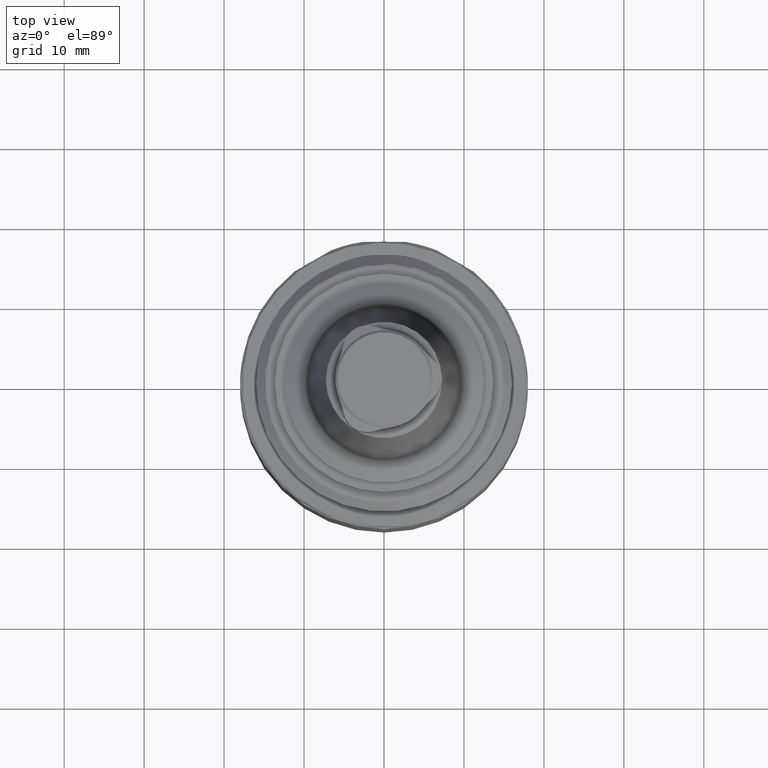
[diagram: clean part render]
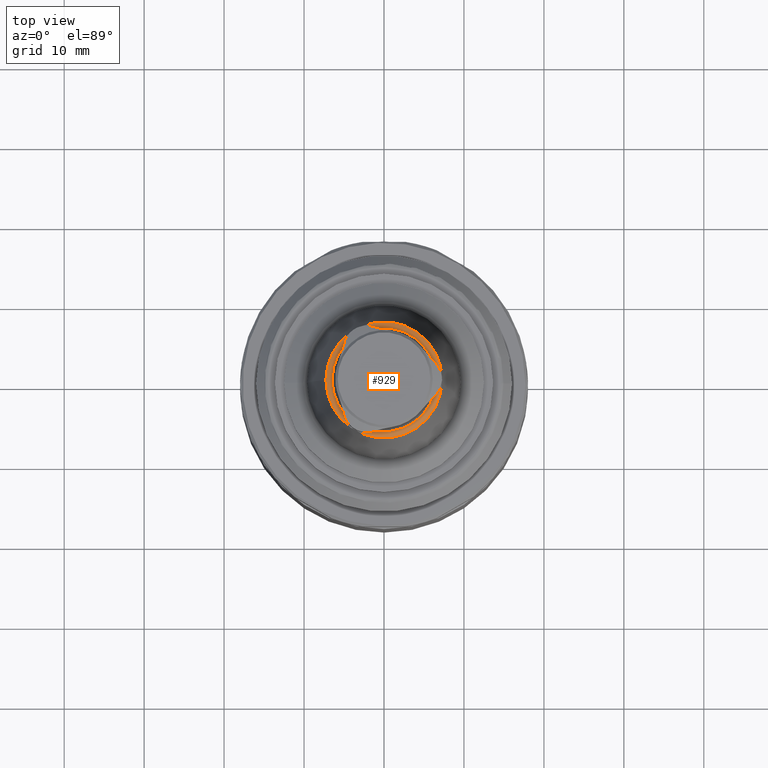
[diagram: same view with one face highlighted and labeled with its STEP entity id]
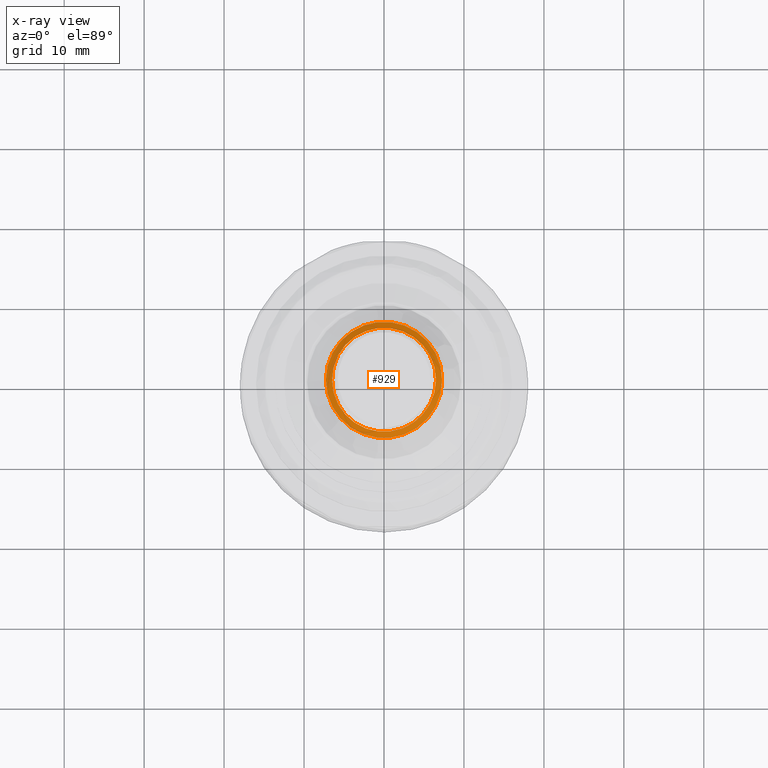
[diagram: x-ray of the same camera — body ghosted, the highlighted face saturated]
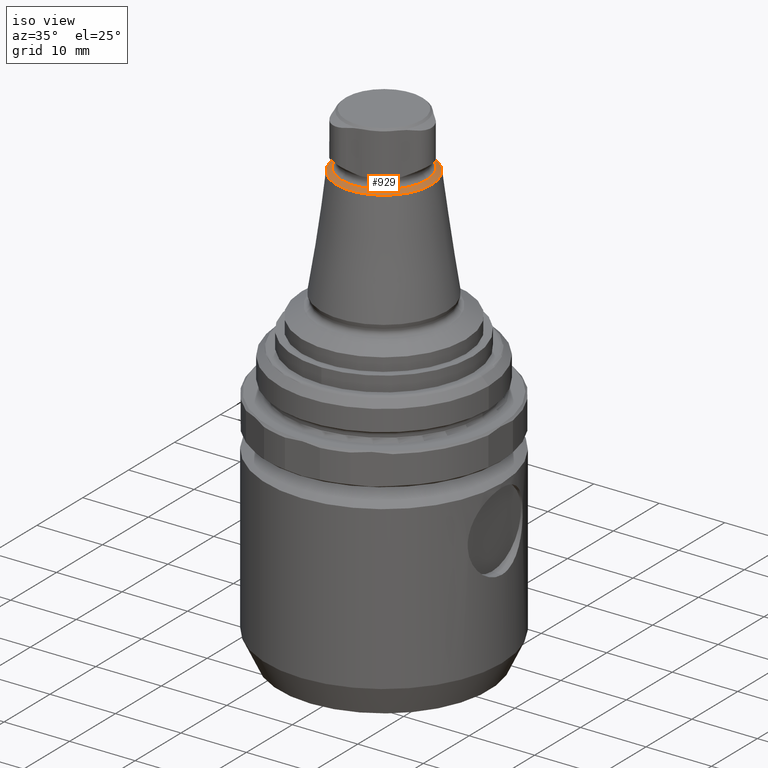
[diagram: same view with one face highlighted and labeled with its STEP entity id]
A machine part, top view. The second image highlights one B-rep face of the part: STEP entity #929.
The next image is the same camera in x-ray: the body ghosted, the highlighted face saturated — about 0% of this face is hidden behind the body in this view.
A second angle (iso view) of the same face is appended — the face is thin or edge-on in the first view.
In plain terms, the highlighted conical surface has half-angle 60 deg.
Its self-contained STEP definition (entity closure, byte-faithful):
#32=CONICAL_SURFACE('',#1025,7.26971296775087,1.04719755119659);
#130=CIRCLE('',#1024,6.5);
#131=CIRCLE('',#1026,7.26971296775087);
#274=ORIENTED_EDGE('',*,*,#476,.T.);
#275=ORIENTED_EDGE('',*,*,#477,.F.);
#476=EDGE_CURVE('',#584,#584,#130,.T.);
#477=EDGE_CURVE('',#585,#585,#131,.T.);
#584=VERTEX_POINT('',#1618);
#585=VERTEX_POINT('',#1621);
#710=EDGE_LOOP('',(#274));
#711=EDGE_LOOP('',(#275));
#808=FACE_BOUND('',#710,.T.);
#809=FACE_BOUND('',#711,.T.);
#929=ADVANCED_FACE('',(#808,#809),#32,.T.);
#1024=AXIS2_PLACEMENT_3D('',#1617,#1198,#1199);
#1025=AXIS2_PLACEMENT_3D('',#1619,#1200,#1201);
#1026=AXIS2_PLACEMENT_3D('',#1620,#1202,#1203);
#1198=DIRECTION('',(2.38112837580965E-16,-7.08117796935346E-33,-1.));
#1199=DIRECTION('',(-1.,6.12303176911188E-17,-2.38112837580965E-16));
#1200=DIRECTION('',(2.38112837580965E-16,-7.08117796935346E-33,-1.));
#1201=DIRECTION('',(-1.,6.12303176911188E-17,-2.38112837580965E-16));
#1202=DIRECTION('',(2.38112837580965E-16,-7.08117796935346E-33,-1.));
#1203=DIRECTION('',(-1.,6.12303176911188E-17,-2.38112837580965E-16));
#1617=CARTESIAN_POINT('',(-1.38002151879454E-15,-6.45762680419439E-32,19.8805754746706));
#1618=CARTESIAN_POINT('',(-6.5,3.97997064992272E-16,19.8805754746706));
#1619=CARTESIAN_POINT('',(-1.27420560503894E-15,-6.77231009674823E-32,19.4361814855409));
#1620=CARTESIAN_POINT('',(-1.27420560503894E-15,-6.77231009674823E-32,19.4361814855409));
#1621=CARTESIAN_POINT('',(-7.26971296775087,4.45126834538632E-16,19.4361814855409));